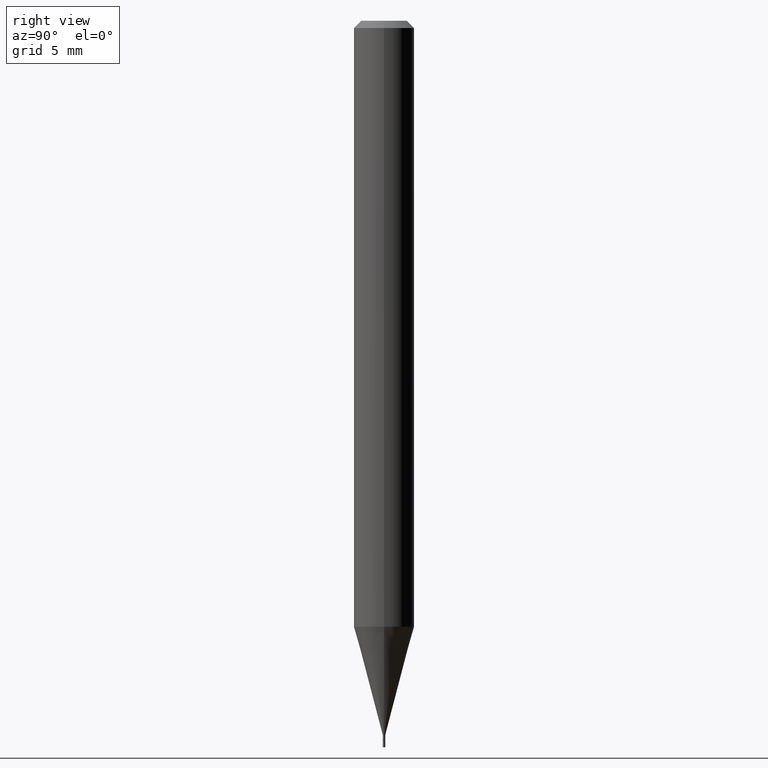
[diagram: clean part render]
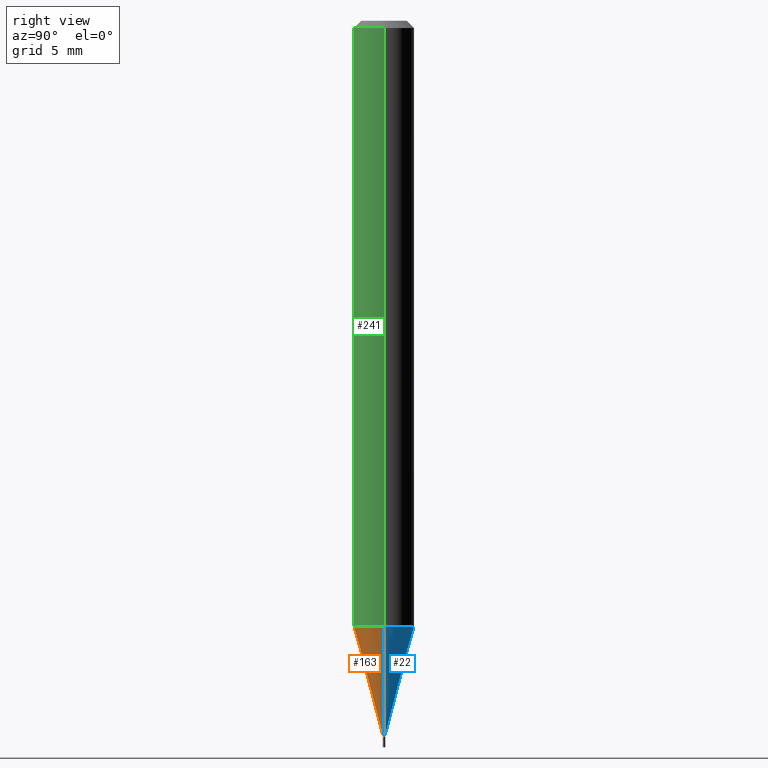
[diagram: same view with three faces highlighted in distinct colors, each labeled with its STEP entity id]
A machine part, right view with three faces highlighted in distinct colors.
Their STEP definitions:

[orange] entity #163 — the highlighted conical surface has half-angle 15 deg.
#1 = DIRECTION ( 'NONE',  ( -2.445468806185136597E-29, 3.491481338843145583E-15, 1.000000000000000000 ) ) ;
#12 = CARTESIAN_POINT ( 'NONE',  ( 0.06250000000000000000, -4.804546997134555937E-15, -1.251076951545866844 ) ) ;
#37 = VERTEX_POINT ( 'NONE', #284 ) ;
#39 = FACE_OUTER_BOUND ( 'NONE', #102, .T. ) ;
#54 = LINE ( 'NONE', #191, #243 ) ;
#59 = DIRECTION ( 'NONE',  ( 0.2588190451025214611, 1.565188264969621573E-15, 0.9659258262890682012 ) ) ;
#102 = EDGE_LOOP ( 'NONE', ( #217, #420, #205, #148 ) ) ;
#109 = DIRECTION ( 'NONE',  ( -2.445468806185136597E-29, 3.491481338843145583E-15, 1.000000000000000000 ) ) ;
#141 = VERTEX_POINT ( 'NONE', #449 ) ;
#148 = ORIENTED_EDGE ( 'NONE', *, *, #417, .F. ) ;
#163 = ADVANCED_FACE ( 'NONE', ( #39 ), #358, .T. ) ;
#172 = EDGE_CURVE ( 'NONE', #141, #350, #347, .T. ) ;
#191 = CARTESIAN_POINT ( 'NONE',  ( -0.002499999999999640531, -5.132171406399640872E-15, -1.475000000000000311 ) ) ;
#198 = LINE ( 'NONE', #371, #226 ) ;
#204 = VERTEX_POINT ( 'NONE', #12 ) ;
#205 = ORIENTED_EDGE ( 'NONE', *, *, #340, .T. ) ;
#215 = CARTESIAN_POINT ( 'NONE',  ( 3.607066489123076592E-29, -5.149934974793640632E-15, -1.475000000000000311 ) ) ;
#217 = ORIENTED_EDGE ( 'NONE', *, *, #307, .F. ) ;
#226 = VECTOR ( 'NONE', #59, 39.37007874015747433 ) ;
#238 = AXIS2_PLACEMENT_3D ( 'NONE', #279, #1, #378 ) ;
#243 = VECTOR ( 'NONE', #457, 39.37007874015747433 ) ;
#279 = CARTESIAN_POINT ( 'NONE',  ( 3.059469659142611361E-29, -4.368111829779164268E-15, -1.251076951545866844 ) ) ;
#284 = CARTESIAN_POINT ( 'NONE',  ( -0.06250000000000000000, -3.924022619929102440E-15, -1.251076951545866844 ) ) ;
#307 = EDGE_CURVE ( 'NONE', #141, #37, #54, .T. ) ;
#311 = AXIS2_PLACEMENT_3D ( 'NONE', #215, #109, #394 ) ;
#339 = CARTESIAN_POINT ( 'NONE',  ( 0.002499999999999640531, -5.167392381487854090E-15, -1.475000000000000311 ) ) ;
#340 = EDGE_CURVE ( 'NONE', #350, #204, #198, .T. ) ;
#347 = CIRCLE ( 'NONE', #434, 0.002499999999999640531 ) ;
#350 = VERTEX_POINT ( 'NONE', #339 ) ;
#352 = DIRECTION ( 'NONE',  ( -2.445468806185136597E-29, 3.491481338843145583E-15, 1.000000000000000000 ) ) ;
#358 = CONICAL_SURFACE ( 'NONE', #311, 0.002499999999999640531, 0.2617993877991501295 ) ;
#359 = CIRCLE ( 'NONE', #238, 0.06250000000000000000 ) ;
#361 = DIRECTION ( 'NONE',  ( 1.000000000000000000, -6.982962677686366107E-15, 0.000000000000000000 ) ) ;
#371 = CARTESIAN_POINT ( 'NONE',  ( 0.002499999999999640531, -5.167392381487854090E-15, -1.475000000000000311 ) ) ;
#378 = DIRECTION ( 'NONE',  ( 1.000000000000000000, -6.982962677686270655E-15, 0.000000000000000000 ) ) ;
#394 = DIRECTION ( 'NONE',  ( 1.000000000000000000, -6.982962677686366107E-15, 0.000000000000000000 ) ) ;
#417 = EDGE_CURVE ( 'NONE', #37, #204, #359, .T. ) ;
#420 = ORIENTED_EDGE ( 'NONE', *, *, #172, .T. ) ;
#434 = AXIS2_PLACEMENT_3D ( 'NONE', #438, #352, #361 ) ;
#438 = CARTESIAN_POINT ( 'NONE',  ( 3.607066489123076592E-29, -5.149934974793640632E-15, -1.475000000000000311 ) ) ;
#449 = CARTESIAN_POINT ( 'NONE',  ( -0.002499999999999640531, -4.528097013164372051E-15, -1.475000000000000311 ) ) ;
#457 = DIRECTION ( 'NONE',  ( -0.2588190451025214611, 5.211531920934551042E-15, 0.9659258262890682012 ) ) ;

[blue] entity #22 — the highlighted conical surface has half-angle 15 deg.
#7 = CARTESIAN_POINT ( 'NONE',  ( 3.607066489123076592E-29, -5.149934974793640632E-15, -1.475000000000000311 ) ) ;
#12 = CARTESIAN_POINT ( 'NONE',  ( 0.06250000000000000000, -4.804546997134555937E-15, -1.251076951545866844 ) ) ;
#22 = ADVANCED_FACE ( 'NONE', ( #246 ), #81, .T. ) ;
#37 = VERTEX_POINT ( 'NONE', #284 ) ;
#54 = LINE ( 'NONE', #191, #243 ) ;
#59 = DIRECTION ( 'NONE',  ( 0.2588190451025214611, 1.565188264969621573E-15, 0.9659258262890682012 ) ) ;
#69 = ORIENTED_EDGE ( 'NONE', *, *, #412, .T. ) ;
#76 = DIRECTION ( 'NONE',  ( -2.445468806185136597E-29, 3.491481338843145583E-15, 1.000000000000000000 ) ) ;
#81 = CONICAL_SURFACE ( 'NONE', #460, 0.002499999999999640531, 0.2617993877991501295 ) ;
#100 = CIRCLE ( 'NONE', #131, 0.06250000000000000000 ) ;
#126 = AXIS2_PLACEMENT_3D ( 'NONE', #349, #388, #165 ) ;
#131 = AXIS2_PLACEMENT_3D ( 'NONE', #278, #429, #387 ) ;
#141 = VERTEX_POINT ( 'NONE', #449 ) ;
#165 = DIRECTION ( 'NONE',  ( 1.000000000000000000, -6.982962677686366107E-15, 0.000000000000000000 ) ) ;
#173 = ORIENTED_EDGE ( 'NONE', *, *, #340, .F. ) ;
#178 = DIRECTION ( 'NONE',  ( 1.000000000000000000, -6.982962677686366107E-15, 0.000000000000000000 ) ) ;
#191 = CARTESIAN_POINT ( 'NONE',  ( -0.002499999999999640531, -5.132171406399640872E-15, -1.475000000000000311 ) ) ;
#198 = LINE ( 'NONE', #371, #226 ) ;
#204 = VERTEX_POINT ( 'NONE', #12 ) ;
#226 = VECTOR ( 'NONE', #59, 39.37007874015747433 ) ;
#243 = VECTOR ( 'NONE', #457, 39.37007874015747433 ) ;
#246 = FACE_OUTER_BOUND ( 'NONE', #396, .T. ) ;
#260 = CIRCLE ( 'NONE', #126, 0.002499999999999640531 ) ;
#265 = ORIENTED_EDGE ( 'NONE', *, *, #362, .F. ) ;
#278 = CARTESIAN_POINT ( 'NONE',  ( 3.059469659142611361E-29, -4.368111829779164268E-15, -1.251076951545866844 ) ) ;
#284 = CARTESIAN_POINT ( 'NONE',  ( -0.06250000000000000000, -3.924022619929102440E-15, -1.251076951545866844 ) ) ;
#307 = EDGE_CURVE ( 'NONE', #141, #37, #54, .T. ) ;
#339 = CARTESIAN_POINT ( 'NONE',  ( 0.002499999999999640531, -5.167392381487854090E-15, -1.475000000000000311 ) ) ;
#340 = EDGE_CURVE ( 'NONE', #350, #204, #198, .T. ) ;
#349 = CARTESIAN_POINT ( 'NONE',  ( 3.607066489123076592E-29, -5.149934974793640632E-15, -1.475000000000000311 ) ) ;
#350 = VERTEX_POINT ( 'NONE', #339 ) ;
#362 = EDGE_CURVE ( 'NONE', #204, #37, #100, .T. ) ;
#371 = CARTESIAN_POINT ( 'NONE',  ( 0.002499999999999640531, -5.167392381487854090E-15, -1.475000000000000311 ) ) ;
#387 = DIRECTION ( 'NONE',  ( 1.000000000000000000, -6.982962677686270655E-15, 0.000000000000000000 ) ) ;
#388 = DIRECTION ( 'NONE',  ( -2.445468806185136597E-29, 3.491481338843145583E-15, 1.000000000000000000 ) ) ;
#396 = EDGE_LOOP ( 'NONE', ( #69, #421, #265, #173 ) ) ;
#412 = EDGE_CURVE ( 'NONE', #350, #141, #260, .T. ) ;
#421 = ORIENTED_EDGE ( 'NONE', *, *, #307, .T. ) ;
#429 = DIRECTION ( 'NONE',  ( -2.445468806185136597E-29, 3.491481338843145583E-15, 1.000000000000000000 ) ) ;
#449 = CARTESIAN_POINT ( 'NONE',  ( -0.002499999999999640531, -4.528097013164372051E-15, -1.475000000000000311 ) ) ;
#457 = DIRECTION ( 'NONE',  ( -0.2588190451025214611, 5.211531920934551042E-15, 0.9659258262890682012 ) ) ;
#460 = AXIS2_PLACEMENT_3D ( 'NONE', #7, #76, #178 ) ;

[green] entity #241 — the highlighted cylindrical surface (edge-blend (fillet) strip) has radius 1.5875 mm, axis along (-0, 0, 1).
#1 = DIRECTION ( 'NONE',  ( -2.445468806185136597E-29, 3.491481338843145583E-15, 1.000000000000000000 ) ) ;
#5 = EDGE_LOOP ( 'NONE', ( #65, #444, #367, #390 ) ) ;
#9 = LINE ( 'NONE', #397, #374 ) ;
#12 = CARTESIAN_POINT ( 'NONE',  ( 0.06250000000000000000, -4.804546997134555937E-15, -1.251076951545866844 ) ) ;
#37 = VERTEX_POINT ( 'NONE', #284 ) ;
#38 = FACE_OUTER_BOUND ( 'NONE', #5, .T. ) ;
#48 = CIRCLE ( 'NONE', #160, 0.06250000000000000000 ) ;
#60 = CARTESIAN_POINT ( 'NONE',  ( -0.06250000000000000000, 4.440892098500626162E-16, -3.074334431409316114E-30 ) ) ;
#65 = ORIENTED_EDGE ( 'NONE', *, *, #255, .F. ) ;
#94 = DIRECTION ( 'NONE',  ( -2.445468806185136597E-29, 3.491481338843145583E-15, 1.000000000000000000 ) ) ;
#105 = EDGE_CURVE ( 'NONE', #315, #147, #48, .T. ) ;
#114 = CARTESIAN_POINT ( 'NONE',  ( 0.06250000000000000000, -4.888073874380388472E-16, -0.01499999999999999944 ) ) ;
#128 = DIRECTION ( 'NONE',  ( -2.445468806185136597E-29, 3.491481338843145583E-15, 1.000000000000000000 ) ) ;
#130 = CARTESIAN_POINT ( 'NONE',  ( -0.06250000000000000000, -1.766152815080843254E-15, -0.01499999999999999944 ) ) ;
#147 = VERTEX_POINT ( 'NONE', #114 ) ;
#153 = DIRECTION ( 'NONE',  ( -2.445468806185136877E-29, 3.491481338843145188E-15, 1.000000000000000000 ) ) ;
#155 = VECTOR ( 'NONE', #162, 39.37007874015748143 ) ;
#158 = LINE ( 'NONE', #60, #155 ) ;
#160 = AXIS2_PLACEMENT_3D ( 'NONE', #455, #128, #262 ) ;
#162 = DIRECTION ( 'NONE',  ( -2.445468806185136877E-29, 3.491481338843145188E-15, 1.000000000000000000 ) ) ;
#189 = EDGE_CURVE ( 'NONE', #204, #147, #9, .T. ) ;
#190 = DIRECTION ( 'NONE',  ( 1.000000000000000000, -6.982962677686266711E-15, 4.876176775795935793E-29 ) ) ;
#204 = VERTEX_POINT ( 'NONE', #12 ) ;
#238 = AXIS2_PLACEMENT_3D ( 'NONE', #279, #1, #378 ) ;
#241 = ADVANCED_FACE ( 'NONE', ( #38 ), #308, .T. ) ;
#255 = EDGE_CURVE ( 'NONE', #37, #315, #158, .T. ) ;
#262 = DIRECTION ( 'NONE',  ( 1.000000000000000000, -6.982962677686266711E-15, 0.000000000000000000 ) ) ;
#272 = AXIS2_PLACEMENT_3D ( 'NONE', #305, #94, #190 ) ;
#279 = CARTESIAN_POINT ( 'NONE',  ( 3.059469659142611361E-29, -4.368111829779164268E-15, -1.251076951545866844 ) ) ;
#284 = CARTESIAN_POINT ( 'NONE',  ( -0.06250000000000000000, -3.924022619929102440E-15, -1.251076951545866844 ) ) ;
#305 = CARTESIAN_POINT ( 'NONE',  ( 0.000000000000000000, 0.000000000000000000, 0.000000000000000000 ) ) ;
#308 = CYLINDRICAL_SURFACE ( 'NONE', #272, 0.06250000000000000000 ) ;
#315 = VERTEX_POINT ( 'NONE', #130 ) ;
#359 = CIRCLE ( 'NONE', #238, 0.06250000000000000000 ) ;
#367 = ORIENTED_EDGE ( 'NONE', *, *, #189, .T. ) ;
#374 = VECTOR ( 'NONE', #153, 39.37007874015748143 ) ;
#378 = DIRECTION ( 'NONE',  ( 1.000000000000000000, -6.982962677686270655E-15, 0.000000000000000000 ) ) ;
#390 = ORIENTED_EDGE ( 'NONE', *, *, #105, .F. ) ;
#397 = CARTESIAN_POINT ( 'NONE',  ( 0.06250000000000000000, -4.364351673553916694E-16, 3.047610484872459871E-30 ) ) ;
#417 = EDGE_CURVE ( 'NONE', #37, #204, #359, .T. ) ;
#444 = ORIENTED_EDGE ( 'NONE', *, *, #417, .T. ) ;
#455 = CARTESIAN_POINT ( 'NONE',  ( 3.668203209277705088E-31, -5.237222008264718399E-17, -0.01499999999999999944 ) ) ;